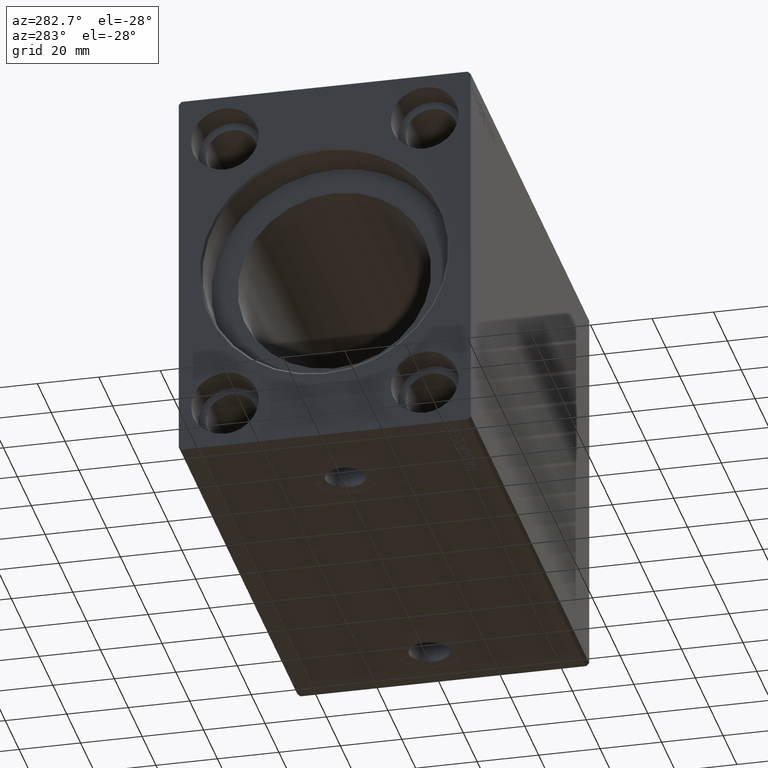
[diagram: clean part render]
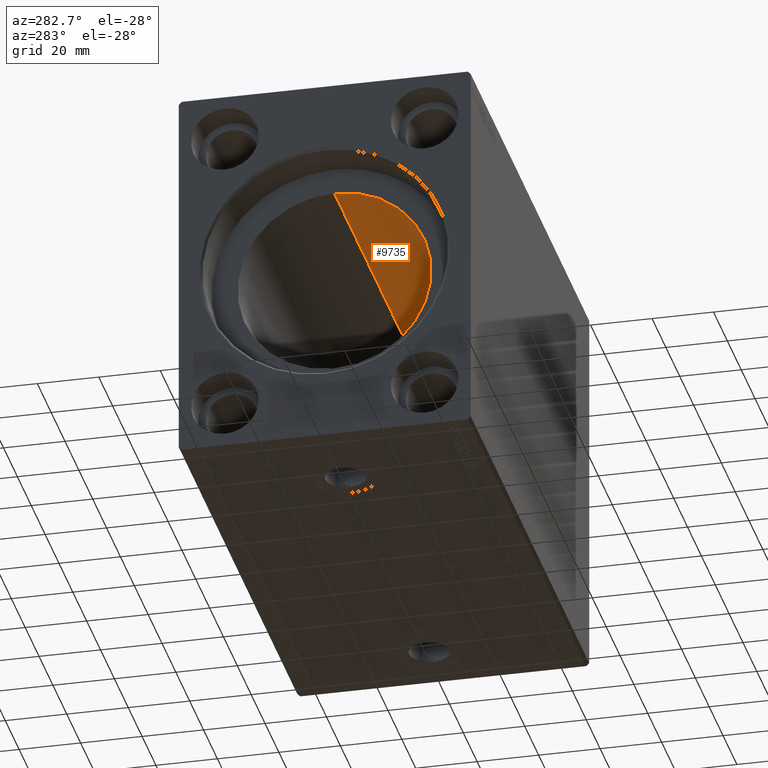
[diagram: same view with one face highlighted and labeled with its STEP entity id]
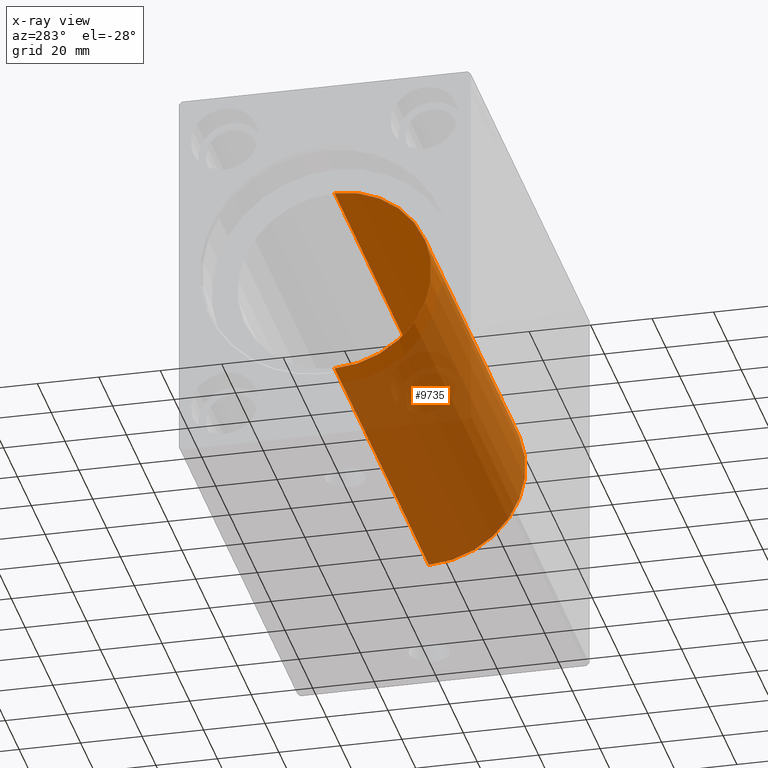
[diagram: x-ray of the same camera — body ghosted, the highlighted face saturated]
A machine part, auxiliary view. The second image highlights one B-rep face of the part: STEP entity #9735.
The next image is the same camera in x-ray: the body ghosted, the highlighted face saturated — about 75% of this face is hidden behind the body in this view.
In plain terms, the highlighted cylindrical surface (partial cylindrical patch) has radius 31.5 mm, axis along (-1, -0, -0).
Its self-contained STEP definition (entity closure, byte-faithful):
#395 = ORIENTED_EDGE ( 'NONE', *, *, #25417, .T. ) ;
#480 = ORIENTED_EDGE ( 'NONE', *, *, #10820, .F. ) ;
#568 = DIRECTION ( 'NONE',  ( 0.000000000000000000, 0.000000000000000000, 1.000000000000000000 ) ) ;
#3995 = FACE_OUTER_BOUND ( 'NONE', #30687, .T. ) ;
#4200 = DIRECTION ( 'NONE',  ( -1.000000000000000000, -0.000000000000000000, -0.000000000000000000 ) ) ;
#4386 = LINE ( 'NONE', #23752, #42070 ) ;
#4576 = ORIENTED_EDGE ( 'NONE', *, *, #35473, .T. ) ;
#4984 = DIRECTION ( 'NONE',  ( -1.000000000000000000, 0.000000000000000000, 0.000000000000000000 ) ) ;
#5410 = CARTESIAN_POINT ( 'NONE',  ( 150.1999999999999886, 3.857637417314162689E-15, -31.50000000000000000 ) ) ;
#5715 = CARTESIAN_POINT ( 'NONE',  ( 150.1999999999999886, 0.000000000000000000, 0.000000000000000000 ) ) ;
#6568 = CIRCLE ( 'NONE', #36756, 31.50000000000000000 ) ;
#6858 = VERTEX_POINT ( 'NONE', #19340 ) ;
#7371 = CARTESIAN_POINT ( 'NONE',  ( 14.00000000000001243, 0.000000000000000000, 0.000000000000000000 ) ) ;
#7432 = CARTESIAN_POINT ( 'NONE',  ( 150.1999999999999886, 0.000000000000000000, 0.000000000000000000 ) ) ;
#9735 = ADVANCED_FACE ( 'NONE', ( #3995 ), #23559, .F. ) ;
#9845 = VERTEX_POINT ( 'NONE', #22237 ) ;
#10531 = AXIS2_PLACEMENT_3D ( 'NONE', #7432, #4200, #568 ) ;
#10820 = EDGE_CURVE ( 'NONE', #36367, #6858, #4386, .T. ) ;
#12300 = DIRECTION ( 'NONE',  ( -1.000000000000000000, -0.000000000000000000, -0.000000000000000000 ) ) ;
#18477 = CIRCLE ( 'NONE', #30129, 31.50000000000000000 ) ;
#19001 = VECTOR ( 'NONE', #12300, 1000.000000000000000 ) ;
#19340 = CARTESIAN_POINT ( 'NONE',  ( 14.00000000000001243, 0.000000000000000000, 31.50000000000000000 ) ) ;
#21285 = CARTESIAN_POINT ( 'NONE',  ( 150.1999999999999886, 0.000000000000000000, 31.50000000000000000 ) ) ;
#22237 = CARTESIAN_POINT ( 'NONE',  ( 14.00000000000001243, 3.857637417314162689E-15, -31.50000000000000000 ) ) ;
#22672 = EDGE_CURVE ( 'NONE', #27909, #36367, #6568, .T. ) ;
#23328 = DIRECTION ( 'NONE',  ( -1.000000000000000000, -0.000000000000000000, -0.000000000000000000 ) ) ;
#23559 = CYLINDRICAL_SURFACE ( 'NONE', #10531, 31.50000000000000000 ) ;
#23752 = CARTESIAN_POINT ( 'NONE',  ( 150.1999999999999886, 0.000000000000000000, 31.50000000000000000 ) ) ;
#25417 = EDGE_CURVE ( 'NONE', #27909, #9845, #32266, .T. ) ;
#27909 = VERTEX_POINT ( 'NONE', #36222 ) ;
#30129 = AXIS2_PLACEMENT_3D ( 'NONE', #7371, #4984, #31203 ) ;
#30687 = EDGE_LOOP ( 'NONE', ( #39984, #395, #4576, #480 ) ) ;
#31203 = DIRECTION ( 'NONE',  ( 0.000000000000000000, 0.000000000000000000, 1.000000000000000000 ) ) ;
#32266 = LINE ( 'NONE', #5410, #19001 ) ;
#35473 = EDGE_CURVE ( 'NONE', #9845, #6858, #18477, .T. ) ;
#36222 = CARTESIAN_POINT ( 'NONE',  ( 150.1999999999999886, 3.857637417314162689E-15, -31.50000000000000000 ) ) ;
#36367 = VERTEX_POINT ( 'NONE', #21285 ) ;
#36756 = AXIS2_PLACEMENT_3D ( 'NONE', #5715, #38781, #41582 ) ;
#38781 = DIRECTION ( 'NONE',  ( -1.000000000000000000, 0.000000000000000000, 0.000000000000000000 ) ) ;
#39984 = ORIENTED_EDGE ( 'NONE', *, *, #22672, .F. ) ;
#41582 = DIRECTION ( 'NONE',  ( 0.000000000000000000, 0.000000000000000000, 1.000000000000000000 ) ) ;
#42070 = VECTOR ( 'NONE', #23328, 1000.000000000000000 ) ;